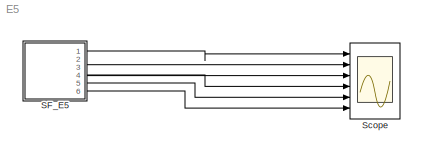
MODEL E5
KIND model
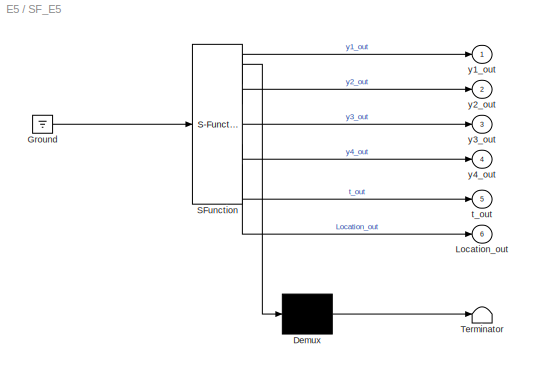
BLOCK [SubSystem] SF_E5
  ErrorFcn = Stateflow.Translate.translate
  PermitHierarchicalResolution = ExplicitOnly
  Ports = [0, 6]
  RequestExecContextInheritance = off
  SFBlockType = Chart
  SID = 1
  TreatAsAtomicUnit = on
BLOCK [Demux] SF_E5/ Demux 
  Outputs = 1
  Ports = [1, 1]
  SID = 1::84
BLOCK [Ground] SF_E5/ Ground 
  SID = 1::86
BLOCK [S-Function] SF_E5/ SFunction 
  EnableBusSupport = off
  FunctionName = sf_sfun
  PortCounts = [1 7]
  Ports = [1, 7]
  SFcnIsStateOwnerBlock = off
  SFunctionDeploymentMode = off
  SID = 1::83
  Tag = Stateflow S-Function 3
BLOCK [Terminator] SF_E5/ Terminator 
  SID = 1::85
BLOCK [Outport] SF_E5/Location_out
  IconDisplay = Port number
  Port = 6
  SID = 1::82
BLOCK [Outport] SF_E5/t_out
  IconDisplay = Port number
  Port = 5
  SID = 1::81
BLOCK [Outport] SF_E5/y1_out
  IconDisplay = Port number
  SID = 1::77
BLOCK [Outport] SF_E5/y2_out
  IconDisplay = Port number
  Port = 2
  SID = 1::78
BLOCK [Outport] SF_E5/y3_out
  IconDisplay = Port number
  Port = 3
  SID = 1::79
BLOCK [Outport] SF_E5/y4_out
  IconDisplay = Port number
  Port = 4
  SID = 1::80
BLOCK [Scope] Scope
  Floating = off
  NumInputPorts = 6
  Ports = [6]
  SID = 2
  ScopeSpecificationString = C++SS(StrPVP('Location','[188, 365, 512, 604]'),StrPVP('Open','off'),MxPVP('AxesTitles',54,'struct(''axes1'',''%<SignalLabel>'',''axes2'',''%<SignalLabel>'',''axes3'',''%<SignalLabel>'',''axes4'',''%<SignalLabel>'',''axes5'',''%<SignalLabel>'',''axes6'',''%<SignalLabel>'')'),StrPVP('SaveToWorkspace','on'),StrPVP('DataFormat','Structure'),StrPVP('LimitDataPoints','off'),StrPVP('Decimation','1'),Str...<+35ch>
LINE SF_E5/ Demux :1 -> SF_E5/ Terminator :1
LINE SF_E5/ Ground :1 -> SF_E5/ SFunction :1
LINE SF_E5/ SFunction :1 -> SF_E5/ Demux :1
LINE SF_E5/ SFunction :2 -> SF_E5/y1_out:1
LINE SF_E5/ SFunction :3 -> SF_E5/y2_out:1
LINE SF_E5/ SFunction :4 -> SF_E5/y3_out:1
LINE SF_E5/ SFunction :5 -> SF_E5/y4_out:1
LINE SF_E5/ SFunction :6 -> SF_E5/t_out:1
LINE SF_E5/ SFunction :7 -> SF_E5/Location_out:1
LINE SF_E5:1 -> Scope:1
LINE SF_E5:2 -> Scope:2
LINE SF_E5:3 -> Scope:3
LINE SF_E5:4 -> Scope:4
LINE SF_E5:5 -> Scope:5
LINE SF_E5:6 -> Scope:6
CHART SF_E5 states=1 transitions=1
  STATE_LABEL 'E5\\ndu:\\ny1_dot = -A * y1 - B * y1 * y3;\\ny2_dot = A * y1 - M * C * y2 * y3;\\ny3_dot = A * y1 - B * y1 * y3 - M * C * y2 * y3 + C * y4;\\ny4_dot = B * y1 * y3 - C * y4;\\nt_dot = 1.0;\\ny1_out=y1;\\ny2_out=y2;\\ny3_out=y3;\\ny4_out=y4;\\nt_out=t;\\nLocation_out =1;'
